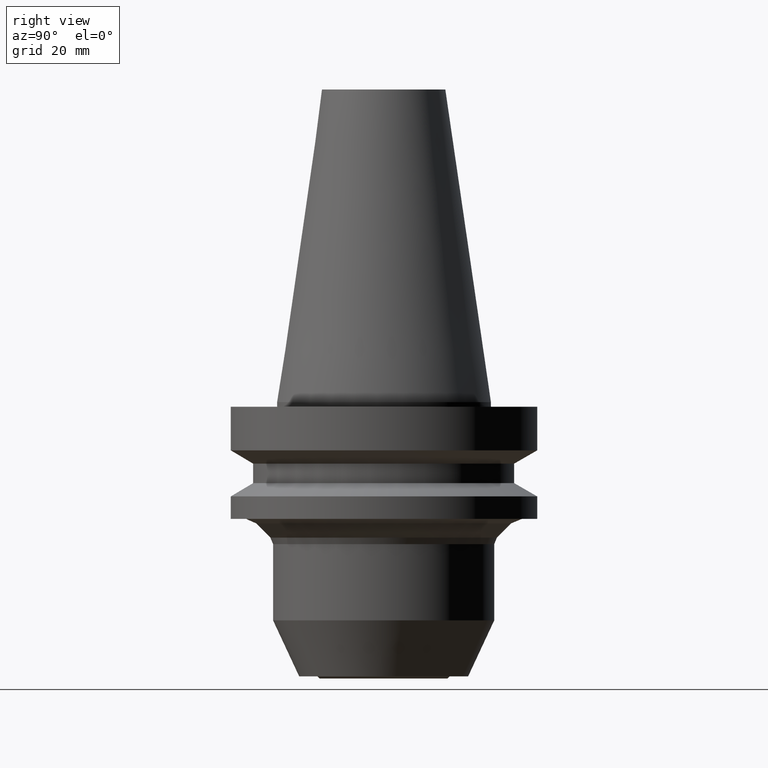
[diagram: clean part render]
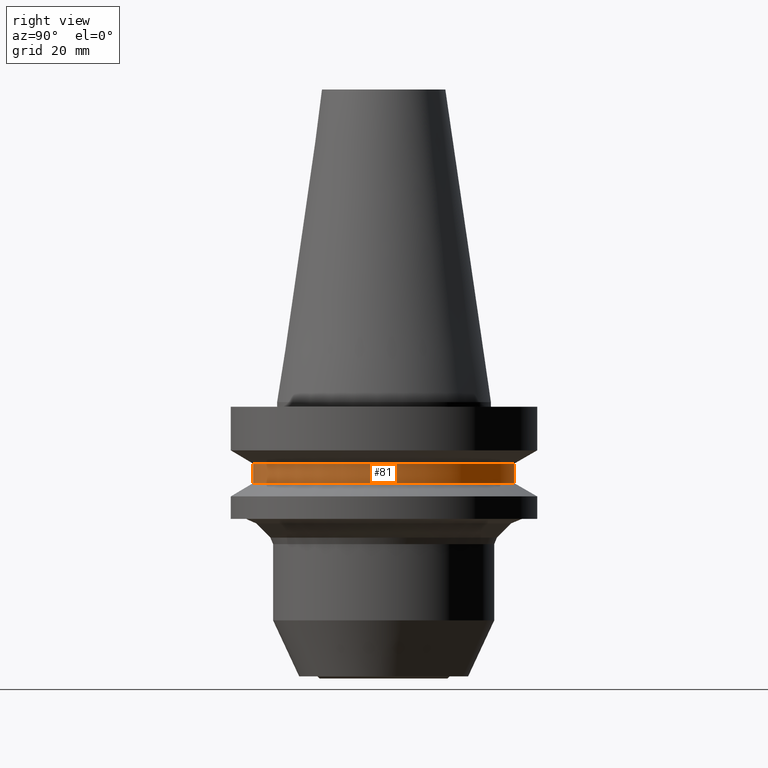
[diagram: same view with one face highlighted and labeled with its STEP entity id]
A machine part, right view. The second image highlights one B-rep face of the part: STEP entity #81.
In plain terms, the highlighted cylindrical surface (bore or boss wall) has radius 42.5 mm, axis along (-0, -0, 1).
Its self-contained STEP definition (entity closure, byte-faithful):
#81=ADVANCED_FACE('',(#111,#112),#113,.T.);
#111=FACE_BOUND('',#163,.T.);
#112=FACE_BOUND('',#164,.T.);
#113=CYLINDRICAL_SURFACE('',#165,42.5);
#163=EDGE_LOOP('',(#227));
#164=EDGE_LOOP('',(#228));
#165=AXIS2_PLACEMENT_3D('',#229,#230,#231);
#227=ORIENTED_EDGE('',*,*,#292,.F.);
#228=ORIENTED_EDGE('',*,*,#291,.T.);
#229=CARTESIAN_POINT('',(1.42059028701093E-015,2.84118057402185E-015,-23.2));
#230=DIRECTION('',(-6.12323399573677E-017,-1.22464679914763E-016,1.0));
#231=DIRECTION('',(-1.23259516440783E-032,1.0,1.22464679914763E-016));
#291=EDGE_CURVE('',#313,#313,#314,.T.);
#292=EDGE_CURVE('',#315,#315,#316,.T.);
#313=VERTEX_POINT('',#347);
#314=CIRCLE('',#348,42.5);
#315=VERTEX_POINT('',#349);
#316=CIRCLE('',#350,42.5);
#347=CARTESIAN_POINT('',(1.2264915470119E-015,42.5,-20.0301270189222));
#348=AXIS2_PLACEMENT_3D('',#386,#387,#388);
#349=CARTESIAN_POINT('',(1.61468902700996E-015,42.5,-26.3698729810777));
#350=AXIS2_PLACEMENT_3D('',#389,#390,#391);
#386=CARTESIAN_POINT('',(1.2264915470119E-015,2.4529830940238E-015,-20.0301270189222));
#387=DIRECTION('',(6.12323399573677E-017,1.22464679914763E-016,-1.0));
#388=DIRECTION('',(-1.23259516440783E-032,1.0,1.22464679914763E-016));
#389=CARTESIAN_POINT('',(1.61468902700996E-015,3.22937805401991E-015,-26.3698729810777));
#390=DIRECTION('',(6.12323399573677E-017,1.22464679914763E-016,-1.0));
#391=DIRECTION('',(-1.23259516440783E-032,1.0,1.22464679914763E-016));